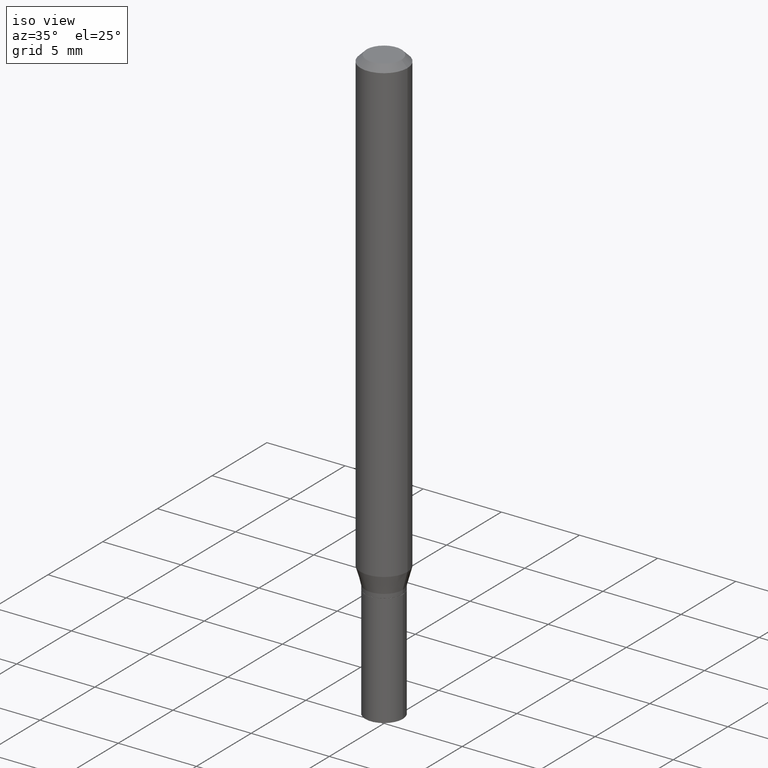
[diagram: clean part render]
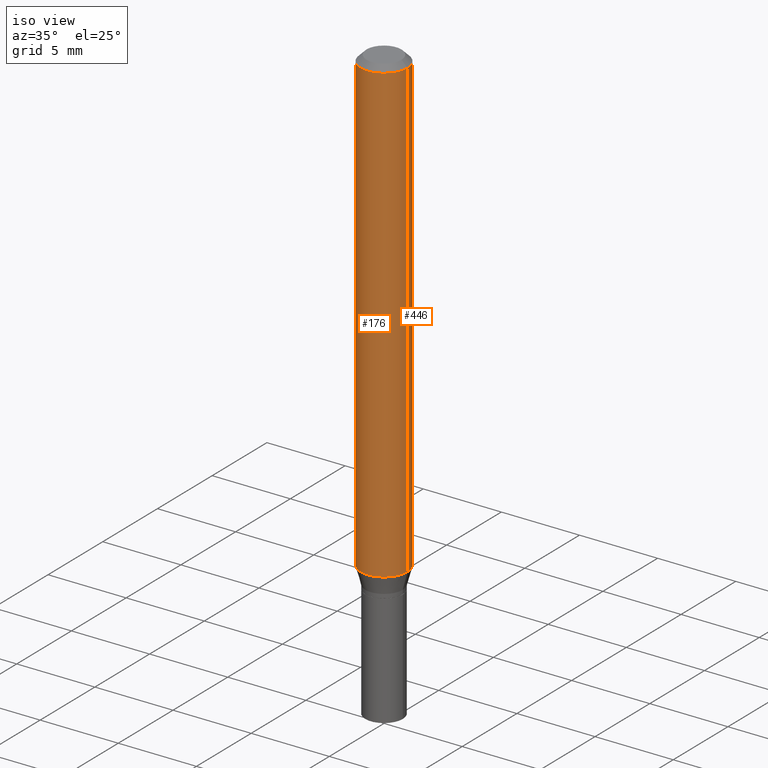
[diagram: same view with one multi-face feature highlighted, each face labeled with its STEP entity id]
A machine part, iso view. The highlighted faces form ONE feature: a constant-radius fillet chain: 2 tangent blend faces with common blend radius 1.4999 mm. The faces share edges in the B-rep.
Their STEP definitions:
[1] entity #446 (Cylinder):
#1 = DIRECTION ( 'NONE',  ( -2.445468806185136597E-29, 3.491481338843145583E-15, 1.000000000000000000 ) ) ;
#11 = LINE ( 'NONE', #83, #407 ) ;
#17 = EDGE_CURVE ( 'NONE', #245, #123, #254, .T. ) ;
#19 = ORIENTED_EDGE ( 'NONE', *, *, #17, .T. ) ;
#33 = CYLINDRICAL_SURFACE ( 'NONE', #34, 0.05904999999999999832 ) ;
#34 = AXIS2_PLACEMENT_3D ( 'NONE', #173, #314, #136 ) ;
#55 = DIRECTION ( 'NONE',  ( 1.000000000000000000, -6.982962677686266711E-15, 0.000000000000000000 ) ) ;
#63 = CARTESIAN_POINT ( 'NONE',  ( 0.05904999999999999832, -4.469311888909361635E-15, -1.161961800470687534 ) ) ;
#80 = CIRCLE ( 'NONE', #119, 0.05904999999999999832 ) ;
#83 = CARTESIAN_POINT ( 'NONE',  ( -0.05904999999999999832, 4.195754854663391478E-16, -2.904631170795521892E-30 ) ) ;
#111 = DIRECTION ( 'NONE',  ( -2.445468806185136877E-29, 3.491481338843145188E-15, 1.000000000000000000 ) ) ;
#119 = AXIS2_PLACEMENT_3D ( 'NONE', #225, #443, #55 ) ;
#123 = VERTEX_POINT ( 'NONE', #466 ) ;
#136 = DIRECTION ( 'NONE',  ( 1.000000000000000000, -6.982962677686266711E-15, 4.876176775795936353E-29 ) ) ;
#137 = DIRECTION ( 'NONE',  ( 1.000000000000000000, -6.982962677686273021E-15, 0.000000000000000000 ) ) ;
#139 = VECTOR ( 'NONE', #152, 39.37007874015748143 ) ;
#151 = EDGE_LOOP ( 'NONE', ( #19, #383, #337, #377 ) ) ;
#152 = DIRECTION ( 'NONE',  ( -2.445468806185136877E-29, 3.491481338843145188E-15, 1.000000000000000000 ) ) ;
#173 = CARTESIAN_POINT ( 'NONE',  ( 0.000000000000000000, 0.000000000000000000, 0.000000000000000000 ) ) ;
#174 = CARTESIAN_POINT ( 'NONE',  ( 2.841541337029784327E-29, -4.056967942791988293E-15, -1.161961800470687534 ) ) ;
#187 = CARTESIAN_POINT ( 'NONE',  ( 0.05904999999999999832, -4.123439461173740327E-16, 2.879382386107500220E-30 ) ) ;
#225 = CARTESIAN_POINT ( 'NONE',  ( 3.668203209277705088E-31, -5.237222008264718399E-17, -0.01499999999999999944 ) ) ;
#245 = VERTEX_POINT ( 'NONE', #63 ) ;
#246 = FACE_OUTER_BOUND ( 'NONE', #151, .T. ) ;
#254 = CIRCLE ( 'NONE', #343, 0.05904999999999999832 ) ;
#266 = CARTESIAN_POINT ( 'NONE',  ( 0.05904999999999999832, -4.647161662000212105E-16, -0.01499999999999999944 ) ) ;
#269 = EDGE_CURVE ( 'NONE', #245, #272, #362, .T. ) ;
#272 = VERTEX_POINT ( 'NONE', #266 ) ;
#281 = CARTESIAN_POINT ( 'NONE',  ( -0.05904999999999999832, -1.635094595970978587E-15, -0.01499999999999999944 ) ) ;
#286 = EDGE_CURVE ( 'NONE', #272, #450, #80, .T. ) ;
#314 = DIRECTION ( 'NONE',  ( -2.445468806185136597E-29, 3.491481338843145583E-15, 1.000000000000000000 ) ) ;
#327 = EDGE_CURVE ( 'NONE', #123, #450, #11, .T. ) ;
#337 = ORIENTED_EDGE ( 'NONE', *, *, #286, .F. ) ;
#343 = AXIS2_PLACEMENT_3D ( 'NONE', #174, #1, #137 ) ;
#362 = LINE ( 'NONE', #187, #139 ) ;
#377 = ORIENTED_EDGE ( 'NONE', *, *, #269, .F. ) ;
#383 = ORIENTED_EDGE ( 'NONE', *, *, #327, .T. ) ;
#407 = VECTOR ( 'NONE', #111, 39.37007874015748143 ) ;
#443 = DIRECTION ( 'NONE',  ( -2.445468806185136597E-29, 3.491481338843145583E-15, 1.000000000000000000 ) ) ;
#446 = ADVANCED_FACE ( 'NONE', ( #246 ), #33, .T. ) ;
#450 = VERTEX_POINT ( 'NONE', #281 ) ;
#466 = CARTESIAN_POINT ( 'NONE',  ( -0.05904999999999999832, -3.637392457325649589E-15, -1.161961800470687534 ) ) ;
[2] entity #176 (Cylinder):
#11 = LINE ( 'NONE', #83, #407 ) ;
#63 = CARTESIAN_POINT ( 'NONE',  ( 0.05904999999999999832, -4.469311888909361635E-15, -1.161961800470687534 ) ) ;
#83 = CARTESIAN_POINT ( 'NONE',  ( -0.05904999999999999832, 4.195754854663391478E-16, -2.904631170795521892E-30 ) ) ;
#111 = DIRECTION ( 'NONE',  ( -2.445468806185136877E-29, 3.491481338843145188E-15, 1.000000000000000000 ) ) ;
#123 = VERTEX_POINT ( 'NONE', #466 ) ;
#127 = CARTESIAN_POINT ( 'NONE',  ( 0.000000000000000000, 0.000000000000000000, 0.000000000000000000 ) ) ;
#139 = VECTOR ( 'NONE', #152, 39.37007874015748143 ) ;
#152 = DIRECTION ( 'NONE',  ( -2.445468806185136877E-29, 3.491481338843145188E-15, 1.000000000000000000 ) ) ;
#176 = ADVANCED_FACE ( 'NONE', ( #229 ), #459, .T. ) ;
#187 = CARTESIAN_POINT ( 'NONE',  ( 0.05904999999999999832, -4.123439461173740327E-16, 2.879382386107500220E-30 ) ) ;
#189 = DIRECTION ( 'NONE',  ( 1.000000000000000000, -6.982962677686273021E-15, 0.000000000000000000 ) ) ;
#191 = DIRECTION ( 'NONE',  ( -2.445468806185136597E-29, 3.491481338843145583E-15, 1.000000000000000000 ) ) ;
#219 = AXIS2_PLACEMENT_3D ( 'NONE', #350, #191, #189 ) ;
#229 = FACE_OUTER_BOUND ( 'NONE', #444, .T. ) ;
#245 = VERTEX_POINT ( 'NONE', #63 ) ;
#255 = CIRCLE ( 'NONE', #284, 0.05904999999999999832 ) ;
#262 = EDGE_CURVE ( 'NONE', #123, #245, #291, .T. ) ;
#266 = CARTESIAN_POINT ( 'NONE',  ( 0.05904999999999999832, -4.647161662000212105E-16, -0.01499999999999999944 ) ) ;
#269 = EDGE_CURVE ( 'NONE', #245, #272, #362, .T. ) ;
#272 = VERTEX_POINT ( 'NONE', #266 ) ;
#274 = DIRECTION ( 'NONE',  ( -2.445468806185136597E-29, 3.491481338843145583E-15, 1.000000000000000000 ) ) ;
#276 = EDGE_CURVE ( 'NONE', #450, #272, #255, .T. ) ;
#280 = ORIENTED_EDGE ( 'NONE', *, *, #327, .F. ) ;
#281 = CARTESIAN_POINT ( 'NONE',  ( -0.05904999999999999832, -1.635094595970978587E-15, -0.01499999999999999944 ) ) ;
#284 = AXIS2_PLACEMENT_3D ( 'NONE', #371, #413, #373 ) ;
#291 = CIRCLE ( 'NONE', #219, 0.05904999999999999832 ) ;
#305 = AXIS2_PLACEMENT_3D ( 'NONE', #127, #274, #417 ) ;
#323 = ORIENTED_EDGE ( 'NONE', *, *, #269, .T. ) ;
#327 = EDGE_CURVE ( 'NONE', #123, #450, #11, .T. ) ;
#331 = ORIENTED_EDGE ( 'NONE', *, *, #262, .T. ) ;
#350 = CARTESIAN_POINT ( 'NONE',  ( 2.841541337029784327E-29, -4.056967942791988293E-15, -1.161961800470687534 ) ) ;
#362 = LINE ( 'NONE', #187, #139 ) ;
#370 = ORIENTED_EDGE ( 'NONE', *, *, #276, .F. ) ;
#371 = CARTESIAN_POINT ( 'NONE',  ( 3.668203209277705088E-31, -5.237222008264718399E-17, -0.01499999999999999944 ) ) ;
#373 = DIRECTION ( 'NONE',  ( 1.000000000000000000, -6.982962677686266711E-15, 0.000000000000000000 ) ) ;
#407 = VECTOR ( 'NONE', #111, 39.37007874015748143 ) ;
#413 = DIRECTION ( 'NONE',  ( -2.445468806185136597E-29, 3.491481338843145583E-15, 1.000000000000000000 ) ) ;
#417 = DIRECTION ( 'NONE',  ( 1.000000000000000000, -6.982962677686266711E-15, 4.876176775795936353E-29 ) ) ;
#444 = EDGE_LOOP ( 'NONE', ( #280, #331, #323, #370 ) ) ;
#450 = VERTEX_POINT ( 'NONE', #281 ) ;
#459 = CYLINDRICAL_SURFACE ( 'NONE', #305, 0.05904999999999999832 ) ;
#466 = CARTESIAN_POINT ( 'NONE',  ( -0.05904999999999999832, -3.637392457325649589E-15, -1.161961800470687534 ) ) ;